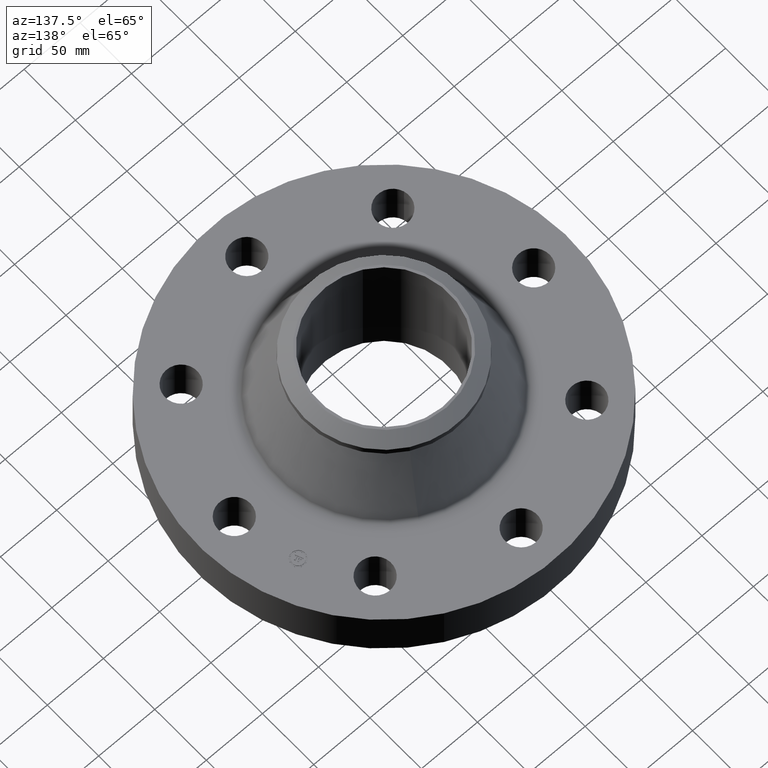
[diagram: clean part render]
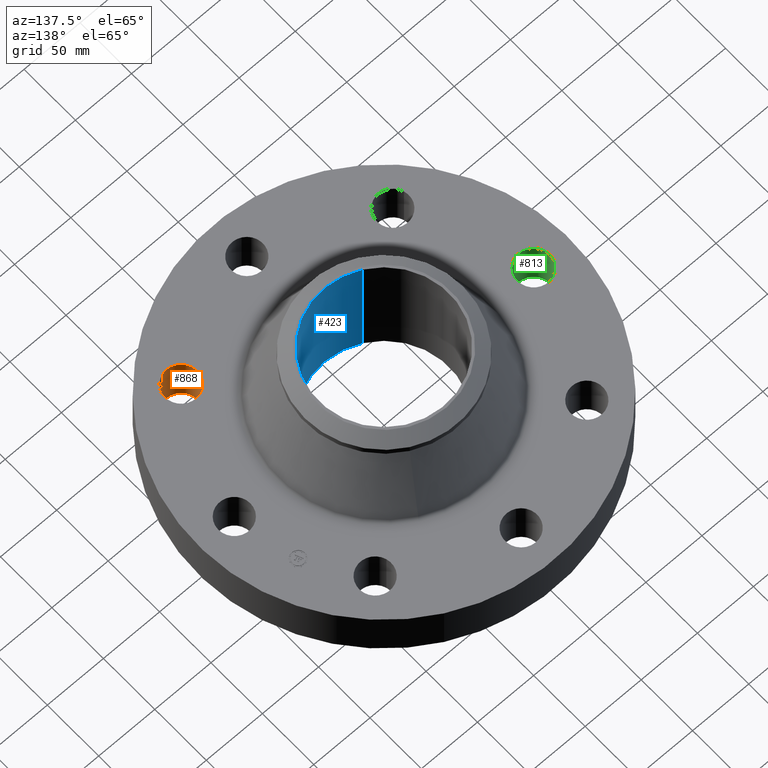
[diagram: same view with three faces highlighted in distinct colors, each labeled with its STEP entity id]
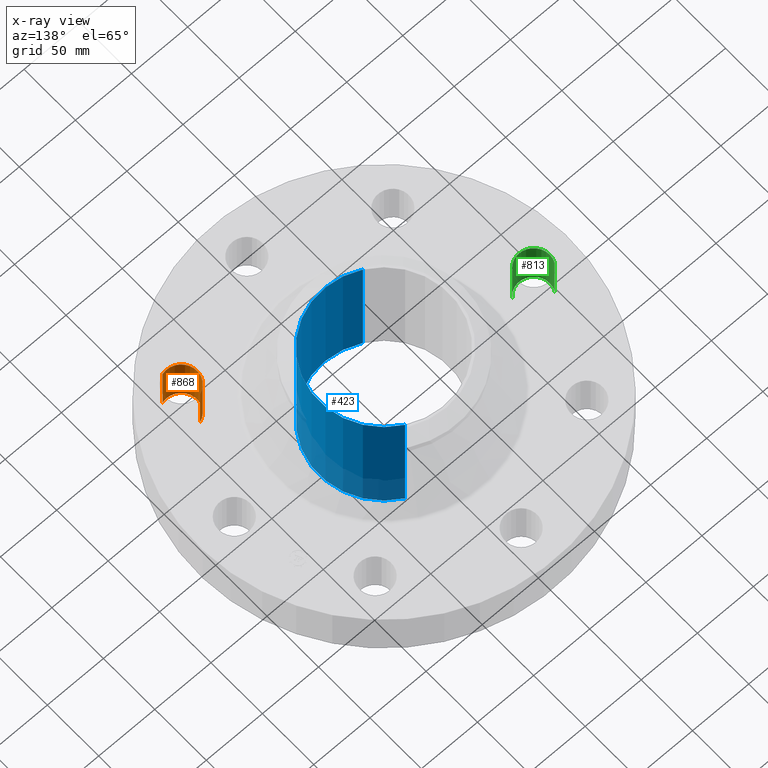
[diagram: x-ray of the same camera — body ghosted, the three highlighted faces saturated]
A machine part, auxiliary view with three faces highlighted in distinct colors.
The next image is the same camera in x-ray (body ghosted, the three faces saturated) — at least one of them is partly hidden behind the body in this view.
Their STEP definitions:

[orange] entity #868 — the highlighted cylindrical surface (edge-blend (fillet) strip) has radius 14.224 mm, axis along (0, -0, -1).
#452=AXIS2_PLACEMENT_3D('Circle Axis2P3D',#450,#451,$) ;
#829=AXIS2_PLACEMENT_3D('Cylinder Axis2P3D',#826,#827,#828) ;
#859=AXIS2_PLACEMENT_3D('Circle Axis2P3D',#857,#858,$) ;
#445=CARTESIAN_POINT('Vertex',(3.5546484638,-3.17496280845,0.)) ;
#447=CARTESIAN_POINT('Vertex',(3.86997273868,-4.24965839404,0.)) ;
#450=CARTESIAN_POINT('Axis2P3D Location',(3.71231060124,-3.71231060124,0.)) ;
#826=CARTESIAN_POINT('Axis2P3D Location',(3.71231060124,-3.71231060124,1.74606299213)) ;
#831=CARTESIAN_POINT('Line Origine',(3.5546484638,-3.17496280845,0.875000000004)) ;
#835=CARTESIAN_POINT('Vertex',(3.5546484638,-3.17496280845,1.75000000001)) ;
#838=CARTESIAN_POINT('Line Origine',(3.86997273868,-4.24965839404,0.875000000004)) ;
#842=CARTESIAN_POINT('Vertex',(3.86997273868,-4.24965839404,1.75000000001)) ;
#857=CARTESIAN_POINT('Axis2P3D Location',(3.71231060124,-3.71231060124,1.75000000001)) ;
#451=DIRECTION('Axis2P3D Direction',(0.,0.,-0.0393700787402)) ;
#827=DIRECTION('Axis2P3D Direction',(0.,-0.,-0.0393700787402)) ;
#828=DIRECTION('Axis2P3D XDirection',(0.0110842335096,-0.0377775444876,0.)) ;
#832=DIRECTION('Vector Direction',(0.,0.,-0.0393700787402)) ;
#839=DIRECTION('Vector Direction',(0.,0.,-0.0393700787402)) ;
#858=DIRECTION('Axis2P3D Direction',(0.,-0.,-0.0393700787402)) ;
#833=VECTOR('Line Direction',#832,0.0393700787402) ;
#840=VECTOR('Line Direction',#839,0.0393700787402) ;
#863=ORIENTED_EDGE('',*,*,#844,.F.) ;
#864=ORIENTED_EDGE('',*,*,#454,.T.) ;
#865=ORIENTED_EDGE('',*,*,#837,.T.) ;
#866=ORIENTED_EDGE('',*,*,#861,.F.) ;
#868=ADVANCED_FACE('PartBody',(#867),#830,.F.) ;
#453=CIRCLE('generated circle',#452,0.560000000002) ;
#860=CIRCLE('generated circle',#859,0.560000000002) ;
#830=CYLINDRICAL_SURFACE('generated cylinder',#829,0.560000000002) ;
#454=EDGE_CURVE('',#448,#446,#453,.T.) ;
#837=EDGE_CURVE('',#446,#836,#834,.F.) ;
#844=EDGE_CURVE('',#448,#843,#841,.F.) ;
#861=EDGE_CURVE('',#843,#836,#860,.T.) ;
#862=EDGE_LOOP('',(#863,#864,#865,#866)) ;
#867=FACE_OUTER_BOUND('',#862,.T.) ;
#834=LINE('Line',#831,#833) ;
#841=LINE('Line',#838,#840) ;
#446=VERTEX_POINT('',#445) ;
#448=VERTEX_POINT('',#447) ;
#836=VERTEX_POINT('',#835) ;
#843=VERTEX_POINT('',#842) ;

[blue] entity #423 — the highlighted cylindrical surface (partial cylindrical patch) has radius 57.9501 mm, axis along (0, 0, -1).
#365=AXIS2_PLACEMENT_3D('Circle Axis2P3D',#363,#364,$) ;
#384=AXIS2_PLACEMENT_3D('Cylinder Axis2P3D',#381,#382,#383) ;
#414=AXIS2_PLACEMENT_3D('Circle Axis2P3D',#412,#413,$) ;
#358=CARTESIAN_POINT('Vertex',(-1.09380936633,-2.00220461496,4.50000000002)) ;
#360=CARTESIAN_POINT('Vertex',(1.09380936633,2.00220461496,4.50000000002)) ;
#363=CARTESIAN_POINT('Axis2P3D Location',(0.,0.,4.50000000002)) ;
#381=CARTESIAN_POINT('Axis2P3D Location',(0.,0.,2.25000000001)) ;
#386=CARTESIAN_POINT('Line Origine',(-1.09380936633,-2.00220461496,2.25000000001)) ;
#390=CARTESIAN_POINT('Vertex',(-1.09380936633,-2.00220461496,-1.03504256784E-014)) ;
#397=CARTESIAN_POINT('Vertex',(1.09380936633,2.00220461496,-1.03504256784E-014)) ;
#400=CARTESIAN_POINT('Line Origine',(1.09380936633,2.00220461496,2.25000000001)) ;
#412=CARTESIAN_POINT('Axis2P3D Location',(0.,0.,-1.06301669129E-014)) ;
#364=DIRECTION('Axis2P3D Direction',(0.,0.,-0.0393700787402)) ;
#382=DIRECTION('Axis2P3D Direction',(0.,0.,-0.0393700787402)) ;
#383=DIRECTION('Axis2P3D XDirection',(0.0188750212049,0.0345504945626,0.)) ;
#387=DIRECTION('Vector Direction',(0.,0.,-0.0393700787402)) ;
#401=DIRECTION('Vector Direction',(0.,0.,-0.0393700787402)) ;
#413=DIRECTION('Axis2P3D Direction',(0.,0.,-0.0393700787402)) ;
#388=VECTOR('Line Direction',#387,0.0393700787402) ;
#402=VECTOR('Line Direction',#401,0.0393700787402) ;
#418=ORIENTED_EDGE('',*,*,#367,.F.) ;
#419=ORIENTED_EDGE('',*,*,#404,.T.) ;
#420=ORIENTED_EDGE('',*,*,#416,.T.) ;
#421=ORIENTED_EDGE('',*,*,#392,.F.) ;
#423=ADVANCED_FACE('PartBody',(#422),#385,.F.) ;
#366=CIRCLE('generated circle',#365,2.28150000001) ;
#415=CIRCLE('generated circle',#414,2.28150000001) ;
#385=CYLINDRICAL_SURFACE('generated cylinder',#384,2.28150000001) ;
#367=EDGE_CURVE('',#361,#359,#366,.T.) ;
#392=EDGE_CURVE('',#359,#391,#389,.T.) ;
#404=EDGE_CURVE('',#361,#398,#403,.T.) ;
#416=EDGE_CURVE('',#398,#391,#415,.T.) ;
#417=EDGE_LOOP('',(#418,#419,#420,#421)) ;
#422=FACE_OUTER_BOUND('',#417,.T.) ;
#389=LINE('Line',#386,#388) ;
#403=LINE('Line',#400,#402) ;
#359=VERTEX_POINT('',#358) ;
#361=VERTEX_POINT('',#360) ;
#391=VERTEX_POINT('',#390) ;
#398=VERTEX_POINT('',#397) ;

[green] entity #813 — the highlighted cylindrical surface (edge-blend (fillet) strip) has radius 14.224 mm, axis along (-0, 0, -1).
#497=AXIS2_PLACEMENT_3D('Circle Axis2P3D',#495,#496,$) ;
#786=AXIS2_PLACEMENT_3D('Cylinder Axis2P3D',#783,#784,#785) ;
#804=AXIS2_PLACEMENT_3D('Circle Axis2P3D',#802,#803,$) ;
#495=CARTESIAN_POINT('Axis2P3D Location',(-5.25000000002,-5.59482469102E-016,0.)) ;
#499=CARTESIAN_POINT('Vertex',(-4.75855376536,-0.268478301619,0.)) ;
#501=CARTESIAN_POINT('Vertex',(-5.74144623468,0.268478301619,0.)) ;
#783=CARTESIAN_POINT('Axis2P3D Location',(-5.25000000002,-6.42939569555E-016,1.74606299213)) ;
#788=CARTESIAN_POINT('Line Origine',(-4.75855376536,-0.268478301619,0.875000000004)) ;
#792=CARTESIAN_POINT('Vertex',(-4.75855376536,-0.268478301619,1.75000000001)) ;
#795=CARTESIAN_POINT('Line Origine',(-5.74144623468,0.268478301619,0.875000000004)) ;
#799=CARTESIAN_POINT('Vertex',(-5.74144623468,0.268478301619,1.75000000001)) ;
#802=CARTESIAN_POINT('Axis2P3D Location',(-5.25000000002,-6.42939569555E-016,1.75000000001)) ;
#496=DIRECTION('Axis2P3D Direction',(0.,0.,-0.0393700787402)) ;
#784=DIRECTION('Axis2P3D Direction',(-0.,0.,-0.0393700787402)) ;
#785=DIRECTION('Axis2P3D XDirection',(-0.0345504945626,0.0188750212049,0.)) ;
#789=DIRECTION('Vector Direction',(0.,0.,-0.0393700787402)) ;
#796=DIRECTION('Vector Direction',(0.,0.,-0.0393700787402)) ;
#803=DIRECTION('Axis2P3D Direction',(-0.,0.,-0.0393700787402)) ;
#790=VECTOR('Line Direction',#789,0.0393700787402) ;
#797=VECTOR('Line Direction',#796,0.0393700787402) ;
#808=ORIENTED_EDGE('',*,*,#794,.F.) ;
#809=ORIENTED_EDGE('',*,*,#503,.T.) ;
#810=ORIENTED_EDGE('',*,*,#801,.T.) ;
#811=ORIENTED_EDGE('',*,*,#806,.F.) ;
#813=ADVANCED_FACE('PartBody',(#812),#787,.F.) ;
#498=CIRCLE('generated circle',#497,0.560000000002) ;
#805=CIRCLE('generated circle',#804,0.560000000002) ;
#787=CYLINDRICAL_SURFACE('generated cylinder',#786,0.560000000002) ;
#503=EDGE_CURVE('',#500,#502,#498,.T.) ;
#794=EDGE_CURVE('',#500,#793,#791,.F.) ;
#801=EDGE_CURVE('',#502,#800,#798,.F.) ;
#806=EDGE_CURVE('',#793,#800,#805,.T.) ;
#807=EDGE_LOOP('',(#808,#809,#810,#811)) ;
#812=FACE_OUTER_BOUND('',#807,.T.) ;
#791=LINE('Line',#788,#790) ;
#798=LINE('Line',#795,#797) ;
#500=VERTEX_POINT('',#499) ;
#502=VERTEX_POINT('',#501) ;
#793=VERTEX_POINT('',#792) ;
#800=VERTEX_POINT('',#799) ;